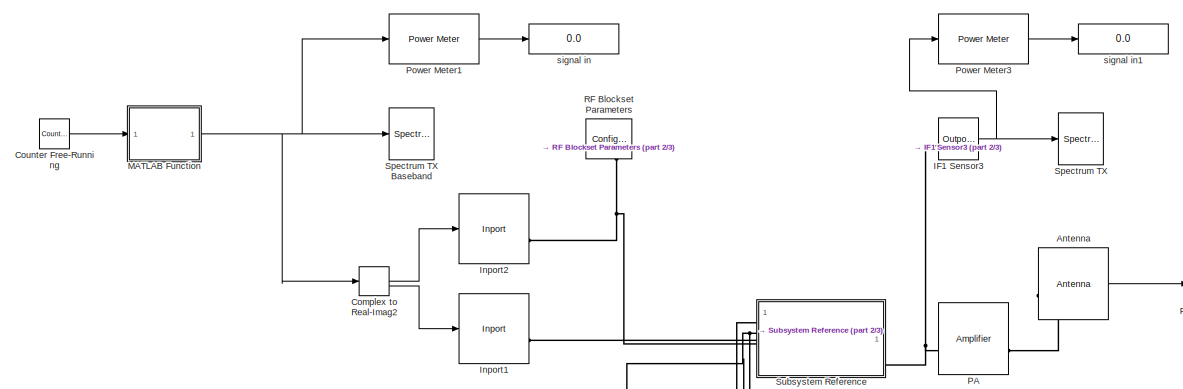
[diagram: root canvas - part 1/3, top left region]
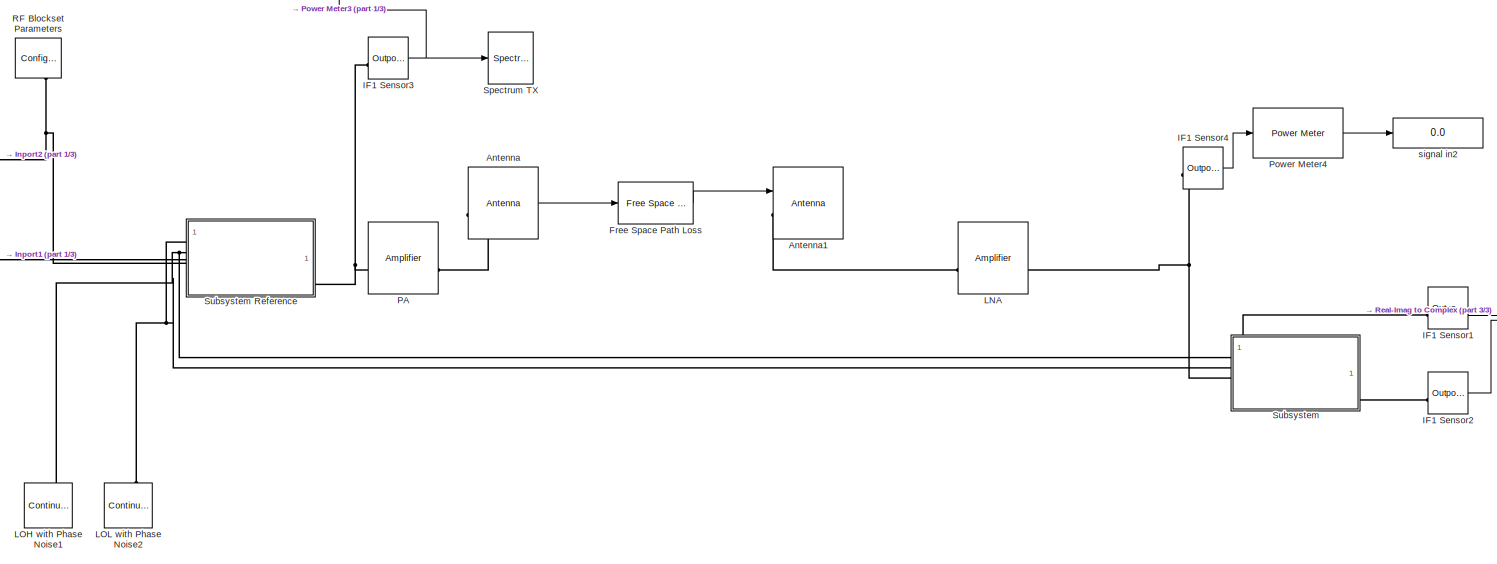
[diagram: root canvas - part 2/3, center side, full height]
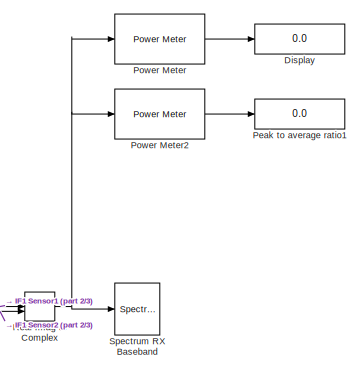
[diagram: root canvas - part 3/3, middle right region]
MODEL slx_4f2c2485d43f
KIND model
CONFIG AbsTol = auto
CONFIG EnableMultiTasking = off
CONFIG FixedStep = auto
CONFIG MaxStep = auto
CONFIG MinStep = auto
CONFIG PreLoadFcn = clear;\n\nsample_time=1/115e6;\ncarriers.LO = 22e9;\ncarriers.LOL = carriers.LO/2;\ncarriers.LOH = carriers.LO*3;\ncarriers.OUT = carriers.LO*3.5;\n\n%Put all carriers in one vector for convenience\ncar_env = unique(structfun(@deal,carriers));\n\n\n% Lower limit of frequency (governed by impulse duration):\nDuration = sample_time*128;\nLLFreq = 1/Duration;\n\n\n%Upper limit of frequency (governed by sample time):\n...<+165ch>
CONFIG RelTol = 1e-3
CONFIG SampleTimeConstraint = Unconstrained
CONFIG SolverName = VariableStepAuto
CONFIG StartTime = 0.0
CONFIG StopTime = 10.0
BLOCK [Reference] Antenna  REF=simrfV2elements/Antenna
  SourceBlock = simrfV2elements/Antenna
  SourceType = Antenna
  UserDataPersistent = on
BLOCK [Reference] Antenna1  REF=simrfV2elements/Antenna
  SourceBlock = simrfV2elements/Antenna
  SourceType = Antenna
  UserDataPersistent = on
BLOCK [ComplexToRealImag] Complex to Real-Imag2
BLOCK [Reference] Counter Free-Running  REF=simulink/Sources/Counter
Free-Running
  SourceBlock = simulink/Sources/Counter\nFree-Running
  SourceType = Counter Free-Running
BLOCK [Display] Display
  Decimation = 1
BLOCK [Reference] Free Space Path Loss  REF=commrflib2/Free Space
Path Loss
  SourceBlock = commrflib2/Free Space\nPath Loss
  SourceType = Free Space Path Loss
BLOCK [Reference] IF1 Sensor1  REF=simrfV2util1/Outport
  SourceBlock = simrfV2util1/Outport
  SourceType = Outport
BLOCK [Reference] IF1 Sensor2  REF=simrfV2util1/Outport
  SourceBlock = simrfV2util1/Outport
  SourceType = Outport
BLOCK [Reference] IF1 Sensor3  REF=simrfV2util1/Outport
  SourceBlock = simrfV2util1/Outport
  SourceType = Outport
BLOCK [Reference] IF1 Sensor4  REF=simrfV2util1/Outport
  SourceBlock = simrfV2util1/Outport
  SourceType = Outport
BLOCK [Reference] Inport1  REF=simrfV2util1/Inport
  SourceBlock = simrfV2util1/Inport
  SourceType = Inport
BLOCK [Reference] Inport2  REF=simrfV2util1/Inport
  SourceBlock = simrfV2util1/Inport
  SourceType = Inport
BLOCK [Reference] LNA  REF=simrfV2elements/Amplifier
  SourceBlock = simrfV2elements/Amplifier
  SourceType = Amplifier
  UserDataPersistent = on
BLOCK [Reference] LOH with Phase Noise1  REF=simrfV2sources1/Continuous
Wave
  NameLocation = right
  SourceBlock = simrfV2sources1/Continuous\nWave
  SourceType = CW Source
BLOCK [Reference] LOL with Phase Noise2  REF=simrfV2sources1/Continuous
Wave
  NameLocation = right
  SourceBlock = simrfV2sources1/Continuous\nWave
  SourceType = CW Source
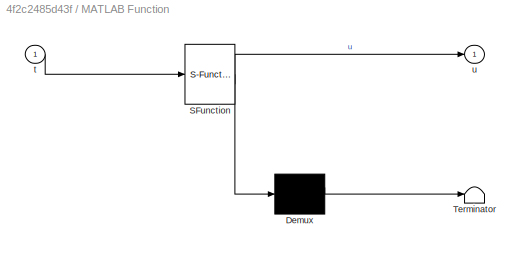
BLOCK [SubSystem] MATLAB Function
  ErrorFcn = Stateflow.Translate.translate
  LibrarySourceBlock = simulink/User-Defined\nFunctions/MATLAB Function
  PermitHierarchicalResolution = ExplicitOnly
  SFBlockType = MATLAB Function
  TreatAsAtomicUnit = on
BLOCK [Demux] MATLAB Function/ Demux 
  Outputs = 1
BLOCK [S-Function] MATLAB Function/ SFunction 
  EnableBusSupport = on
  FunctionName = sf_sfun
  PortCounts = [1 2]
  SFcnIsStateOwnerBlock = off
  SFunctionDeploymentMode = off
  Tag = Stateflow S-Function 2
BLOCK [Terminator] MATLAB Function/ Terminator 
BLOCK [Inport] MATLAB Function/t
BLOCK [Outport] MATLAB Function/u
BLOCK [Reference] PA  REF=simrfV2elements/Amplifier
  SourceBlock = simrfV2elements/Amplifier
  SourceType = Amplifier
  UserDataPersistent = on
BLOCK [Display] Peak to average ratio1
  Decimation = 1
BLOCK [Reference] Power Meter  REF=dspstat3/Power Meter
  LibrarySourceBlock = commutil2/Power Meter
  SourceBlock = dspstat3/Power Meter
  SourceType = dsp.simulink.PowerMeter
BLOCK [Reference] Power Meter1  REF=dspstat3/Power Meter
  LibrarySourceBlock = commutil2/Power Meter
  SourceBlock = dspstat3/Power Meter
  SourceType = dsp.simulink.PowerMeter
BLOCK [Reference] Power Meter2  REF=dspstat3/Power Meter
  LibrarySourceBlock = commutil2/Power Meter
  SourceBlock = dspstat3/Power Meter
  SourceType = dsp.simulink.PowerMeter
BLOCK [Reference] Power Meter3  REF=dspstat3/Power Meter
  LibrarySourceBlock = commutil2/Power Meter
  SourceBlock = dspstat3/Power Meter
  SourceType = dsp.simulink.PowerMeter
BLOCK [Reference] Power Meter4  REF=dspstat3/Power Meter
  LibrarySourceBlock = commutil2/Power Meter
  SourceBlock = dspstat3/Power Meter
  SourceType = dsp.simulink.PowerMeter
BLOCK [Reference] RF Blockset Parameters  REF=simrfV2util1/Configuration
  NameLocation = right
  SourceBlock = simrfV2util1/Configuration
  SourceType = Configuration
BLOCK [RealImagToComplex] Real-Imag to Complex
BLOCK [SpectrumAnalyzer] Spectrum RX Baseband
  ScopeSpecificationString = spbscopes.SpectrumAnalyzerBlockCfg('CurrentConfiguration', extmgr.ConfigurationSet(extmgr.Configuration('Core','General UI',true),extmgr.Configuration('Core','Source UI',true),extmgr.Configuration('Sources','WiredSimulink',true),extmgr.Configuration('Sources','Simulink',false),extmgr.Configuration('Sources','File',false),extmgr.Configuration('Sources','Workspace',false),extmgr.Configuration('Sourc...<+3289ch>
BLOCK [SpectrumAnalyzer] Spectrum TX
  ScopeSpecificationString = spbscopes.SpectrumAnalyzerBlockCfg('CurrentConfiguration', extmgr.ConfigurationSet(extmgr.Configuration('Core','General UI',true),extmgr.Configuration('Core','Source UI',true),extmgr.Configuration('Sources','WiredSimulink',true),extmgr.Configuration('Sources','Simulink',false),extmgr.Configuration('Sources','File',false),extmgr.Configuration('Sources','Workspace',false),extmgr.Configuration('Sourc...<+3326ch>
BLOCK [SpectrumAnalyzer] Spectrum TX Baseband
  ScopeSpecificationString = spbscopes.SpectrumAnalyzerBlockCfg('CurrentConfiguration', extmgr.ConfigurationSet(extmgr.Configuration('Core','General UI',true),extmgr.Configuration('Core','Source UI',true),extmgr.Configuration('Sources','WiredSimulink',true),extmgr.Configuration('Sources','Simulink',false),extmgr.Configuration('Sources','File',false),extmgr.Configuration('Sources','Workspace',false),extmgr.Configuration('Sourc...<+3643ch>
BLOCK [SubSystem] Subsystem
  PortSchema = {"entries":[{"content":{"sides":[{"content":{"connectorIds":["LConn3","LConn1","LConn2"]},"type":"ConnectorPlacement.EquallySpacedRectSide","uuid":"8336b51e-e5d8-49cc-804f-7bfb99400ab0"},{"content":{"connectorIds":["LConn4","LConn5"],"side":"RIGHT"},"type":"ConnectorPlacement.EquallySpacedRectSide","uuid":"6f005c77-3014-47d2-89f9-41814728faba"},{"content":{"connectorIds":[],"side":"TOP"},"type":"C...<+272ch>
  ReferencedSubsystem = dn_converter
BLOCK [SubSystem] Subsystem Reference
  PortSchema = {"entries":[{"content":{"sides":[{"content":{"connectorIds":["LConn3","LConn4","LConn2","LConn1"]},"type":"ConnectorPlacement.EquallySpacedRectSide","uuid":"8336b51e-e5d8-49cc-804f-7bfb99400ab0"},{"content":{"connectorIds":["LConn5"],"side":"RIGHT"},"type":"ConnectorPlacement.EquallySpacedRectSide","uuid":"6f005c77-3014-47d2-89f9-41814728faba"},{"content":{"connectorIds":[],"side":"TOP"},"type":"C...<+272ch>
  ReferencedSubsystem = up_converter
BLOCK [Display] signal in
  Decimation = 1
BLOCK [Display] signal in1
  Decimation = 1
BLOCK [Display] signal in2
  Decimation = 1
LINE Antenna:1 -> Free Space Path Loss:1
LINE Complex to Real-Imag2:1 -> Inport2:1
LINE Complex to Real-Imag2:2 -> Inport1:1
LINE Counter Free-Running:1 -> MATLAB Function:1
LINE Free Space Path Loss:1 -> Antenna1:1
LINE IF1 Sensor1:1 -> Real-Imag to Complex:1
LINE IF1 Sensor2:1 -> Real-Imag to Complex:2
NET IF1 Sensor3:1 -> Power Meter3:1, Spectrum TX:1
LINE IF1 Sensor4:1 -> Power Meter4:1
NET MATLAB Function:1 -> Complex to Real-Imag2:1, Power Meter1:1, Spectrum TX Baseband:1
LINE Power Meter1:1 -> signal in:1
LINE Power Meter2:1 -> Peak to average ratio1:1
LINE Power Meter3:1 -> signal in1:1
LINE Power Meter4:1 -> signal in2:1
LINE Power Meter:1 -> Display:1
NET Real-Imag to Complex:1 -> Power Meter2:1, Power Meter:1, Spectrum RX Baseband:1
PLINE Antenna1:LConn1 -- LNA:LConn1
PLINE Antenna:LConn1 -- PA:RConn1
PLINE IF1 Sensor1:LConn1 -- Subsystem:LConn4
PLINE IF1 Sensor2:LConn1 -- Subsystem:LConn5
PNET net1: IF1 Sensor3:LConn1 -- PA:LConn1 -- Subsystem Reference:LConn5
PNET net2: IF1 Sensor4:LConn1 -- LNA:RConn1 -- Subsystem:LConn3
PLINE Inport1:RConn1 -- Subsystem Reference:LConn4
PNET net3: Inport2:RConn1 -- RF Blockset Parameters:LConn1 -- Subsystem Reference:LConn3
PNET net4: LOH with Phase Noise1:LConn1 -- Subsystem Reference:LConn2 -- Subsystem:LConn1
PNET net5: LOL with Phase Noise2:LConn1 -- Subsystem Reference:LConn1 -- Subsystem:LConn2
note: NET lines group one-source signal fan-out (src -> all destinations, sorted); 1:1 wires keep LINE; PNET lines group multi-terminal physical nets as a canonical sorted terminal list (undirected conserving connections); 2-terminal nets keep the pairwise PLINE form
CHART MATLAB Function states=1 transitions=1
  STATE_LABEL 'eML_blk_kernel()'
  STATE_LABEL 'SCRIPT:\nfunction u   = fcn(t)\n   %test of the block\n   t=double(t);\n   pdb=-16;   %dial input power in dBm 50-ohm reference\n   v = sqrt(1/1000*10^(pdb/10));\n   f=[1 2 3 4 5 6  ]*455e-5;\n   u=v*sum(exp(2.0*3.14*f*t*1j));'
CHART  states=0 transitions=0
